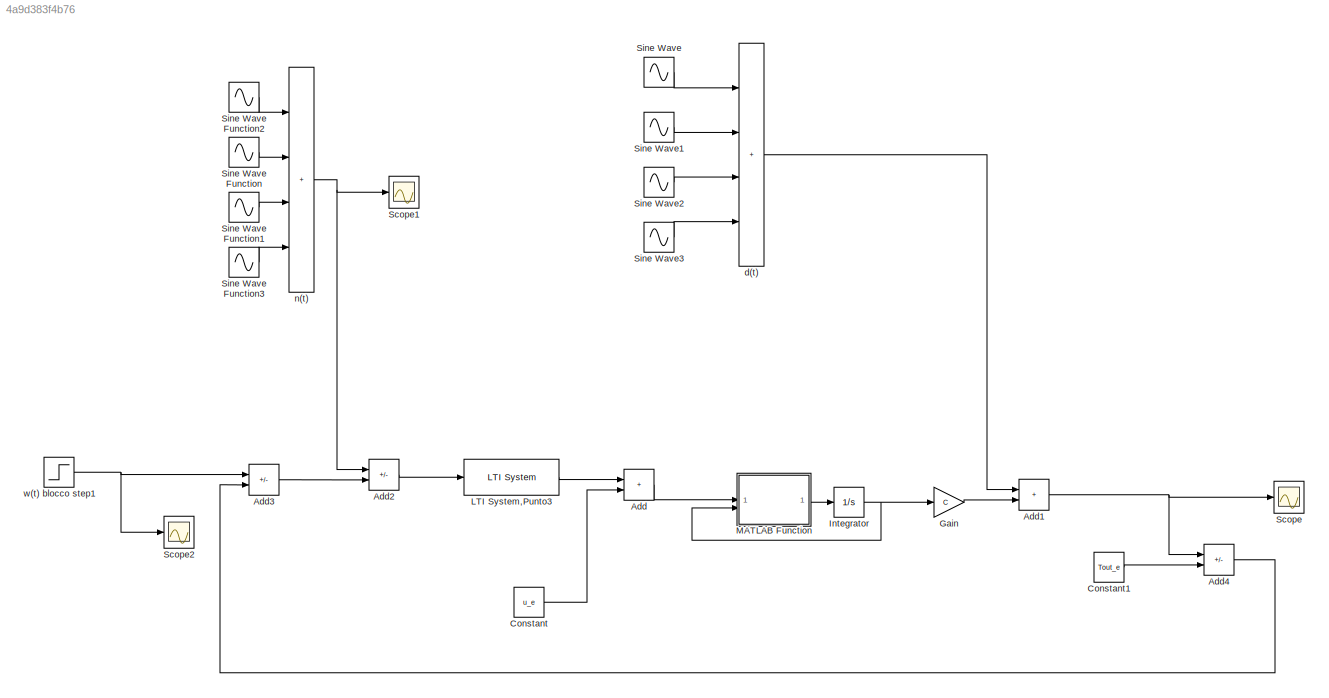
MODEL slx_4a9d383f4b76
KIND model
CONFIG AbsTol = auto
CONFIG EnableMultiTasking = off
CONFIG FixedStep = auto
CONFIG MaxStep = 1e-6
CONFIG MinStep = auto
CONFIG RelTol = 1e-3
CONFIG SampleTimeConstraint = Unconstrained
CONFIG SolverName = VariableStepAuto
CONFIG StartTime = 0.0
CONFIG StopTime = 0.1
BLOCK [Sum] Add
  IconShape = rectangular
BLOCK [Sum] Add1
  IconShape = rectangular
BLOCK [Sum] Add2
  IconShape = rectangular
  Inputs = -+
BLOCK [Sum] Add3
  IconShape = rectangular
  Inputs = +-
BLOCK [Sum] Add4
  IconShape = rectangular
  Inputs = +-
BLOCK [Constant] Constant
  Value = u_e
BLOCK [Constant] Constant1
  Value = Tout_e
BLOCK [Gain] Gain
  Gain = C
  Multiplication = Matrix(K*u)
BLOCK [Integrator] Integrator
  InitialCondition = [TR_e;Tout_e]
BLOCK [Reference] LTI System,Punto3  REF=cstblocks/LTI System
  SourceBlock = cstblocks/LTI System
  SourceType = LTI Block
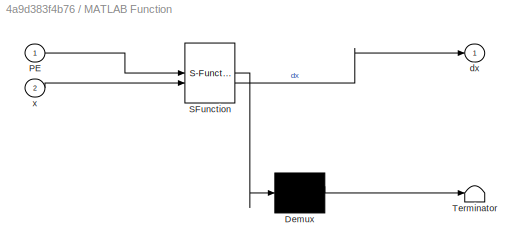
BLOCK [SubSystem] MATLAB Function
  ErrorFcn = Stateflow.Translate.translate
  PermitHierarchicalResolution = ExplicitOnly
  SFBlockType = MATLAB Function
  TreatAsAtomicUnit = on
BLOCK [Demux] MATLAB Function/ Demux 
  Outputs = 1
BLOCK [S-Function] MATLAB Function/ SFunction 
  EnableBusSupport = off
  FunctionName = sf_sfun
  PortCounts = [2 2]
  SFcnIsStateOwnerBlock = off
  SFunctionDeploymentMode = off
  Tag = Stateflow S-Function 2
BLOCK [Terminator] MATLAB Function/ Terminator 
BLOCK [Inport] MATLAB Function/PE
BLOCK [Outport] MATLAB Function/dx
BLOCK [Inport] MATLAB Function/x
  Port = 2
BLOCK [Scope] Scope
  Floating = off
  GraphicalSettings = {"GraphicalSettings":{"LegacySettings":true,"Style":{"Style":{"PlotType":"Auto"}}}}
  NumInputPorts = 1
  WasSavedAsWebScope = on
BLOCK [Scope] Scope1
  ActiveDisplayYMaximum = 1.0601688758437016
  ActiveDisplayYMinimum = -1.1070117590508757
  ContainerLayout = {"WindowBounds":[128,48,1280,768],"gridDimensions":{"w":1,"h":1},"tileCount":1,"tileCoverage":1,"columnWeights":1,"rowWeights":1,"tileOccupancy":{}}
  DataLoggingVariableName = ScopeData1
  Floating = off
  GraphicalSettings = {"AxesScalingProperties":{"AlignXAxis":"Center","AlignYAxis":"Center","AutoScaleXAxisLimits":false,"AxesScaling":"Manual","AxesScalingNumUpdates":10,"ExpandOnly":true,"ScaleAxesLimitsAtStop":false,"XAxisDataRange":100,"YAxisDataRange":80},"DisplayProperties":{"ColorOrder":["auto","auto","auto","auto","auto","auto","auto","auto","auto","auto","auto","auto","auto","auto","auto","auto","auto","auto",...<+1973ch>
  MultipleDisplayCache = [{"MaxYLimMag":1,"MaxYLimReal":1.0601688758437016,"MinYLimMag":0,"MinYLimReal":-1.1070117590508757,"PlotAsMagnitudePhase":false,"ShowGrid":true,"ShowLegend":false,"Title":"%<SignalLabel>","YLabel":""}]
  NumInputPorts = 1
  ScopeFrameLocation = window
  WasSavedAsWebScope = on
  WindowPosition = [179.000000,158.000000,560.000000,420.000000,]
BLOCK [Scope] Scope2
  ActiveDisplayYMaximum = 1.0601688758437016
  ActiveDisplayYMinimum = -1.1070117590508757
  ContainerLayout = {"WindowBounds":[128,48,1280,768],"gridDimensions":{"w":1,"h":1},"tileCount":1,"tileCoverage":1,"columnWeights":1,"rowWeights":1,"tileOccupancy":{}}
  DataLoggingVariableName = ScopeData2
  Floating = off
  GraphicalSettings = {"AxesScalingProperties":{"AlignXAxis":"Center","AlignYAxis":"Center","AutoScaleXAxisLimits":false,"AxesScaling":"Manual","AxesScalingNumUpdates":10,"ExpandOnly":true,"ScaleAxesLimitsAtStop":false,"XAxisDataRange":100,"YAxisDataRange":80},"DisplayProperties":{"ColorOrder":["auto","auto","auto","auto","auto","auto","auto","auto","auto","auto","auto","auto","auto","auto","auto","auto","auto","auto",...<+1973ch>
  MultipleDisplayCache = [{"MaxYLimMag":1,"MaxYLimReal":1.0601688758437016,"MinYLimMag":0,"MinYLimReal":-1.1070117590508757,"PlotAsMagnitudePhase":false,"ShowGrid":true,"ShowLegend":false,"Title":"%<SignalLabel>","YLabel":""}]
  NumInputPorts = 1
  ScopeFrameLocation = window
  WasSavedAsWebScope = on
  WindowPosition = [69.000000,99.000000,560.000000,420.000000,]
BLOCK [Sin] Sine Wave
  Amplitude = 1.5
  Frequency = 0.08
  SampleTime = 0
BLOCK [Sin] Sine Wave Function
  Amplitude = 3
  Frequency = 10e4
  SampleTime = 0
  TimeSource = Use external signal
BLOCK [Sin] Sine Wave Function1
  Amplitude = 3
  Frequency = 15e4
  SampleTime = 0
  TimeSource = Use external signal
BLOCK [Sin] Sine Wave Function2
  Amplitude = 0
  Frequency = 5e4
  SampleTime = 0
  TimeSource = Use external signal
BLOCK [Sin] Sine Wave Function3
  Amplitude = 3
  Frequency = 20e4
  SampleTime = 0
  TimeSource = Use external signal
BLOCK [Sin] Sine Wave1
  Amplitude = 1.5
  Frequency = 0.16
  SampleTime = 0
BLOCK [Sin] Sine Wave2
  Amplitude = 1.5
  Frequency = 0.24
  SampleTime = 0
BLOCK [Sin] Sine Wave3
  Amplitude = 1.5
  Frequency = 0.32
  SampleTime = 0
BLOCK [Sum] d(t)
  IconShape = rectangular
  Inputs = ++++
BLOCK [Sum] n(t)
  IconShape = rectangular
  Inputs = ++++
BLOCK [Step] w(t) blocco step1
  After = 4
  SampleTime = 0
  Time = 0
NET Add1:1 -> Add4:1, Scope:1
LINE Add2:1 -> LTI System,Punto3:1
LINE Add3:1 -> Add2:2
LINE Add4:1 -> Add3:2
LINE Add:1 -> MATLAB Function:1
LINE Constant1:1 -> Add4:2
LINE Constant:1 -> Add:2
LINE Gain:1 -> Add1:2
NET Integrator:1 -> Gain:1, MATLAB Function:2
LINE LTI System,Punto3:1 -> Add:1
LINE MATLAB Function:1 -> Integrator:1
LINE Sine Wave Function1:1 -> n(t):3
LINE Sine Wave Function2:1 -> n(t):1
LINE Sine Wave Function3:1 -> n(t):4
LINE Sine Wave Function:1 -> n(t):2
LINE Sine Wave1:1 -> d(t):2
LINE Sine Wave2:1 -> d(t):3
LINE Sine Wave3:1 -> d(t):4
LINE Sine Wave:1 -> d(t):1
LINE d(t):1 -> Add1:1
NET n(t):1 -> Add2:1, Scope1:1
NET w(t) blocco step1:1 -> Add3:1, Scope2:1
note: NET lines group one-source signal fan-out (src -> all destinations, sorted); 1:1 wires keep LINE
CHART MATLAB Function states=1 transitions=1
  STATE_LABEL 'eML_blk_kernel()'
  STATE_LABEL 'SCRIPT:\nfunction dx = fcn(PE, x)\n    % Parametri fisici [cite: 432]\n    hR = 50; AR = 0.07; cR = 840.8; mR = 2.542;\n    cA = 1010; mA = 0.1041; m_dotA = 0.2; Tin = 28; kappa = 3e-3;\n\n    % Estrazione degli stati dal vettore x\n    % x(1) è TR, x(2) è Tout [cite: 201]\n    TR = x(1); \n    Tout = x(2);\n\n    % Equazioni differenziali [cite: 370]\n    dTR = ( hR*AR*(Tout - TR) + PE / (1 + kappa*TR) ) / (...<+168ch>'
CHART  states=0 transitions=0
